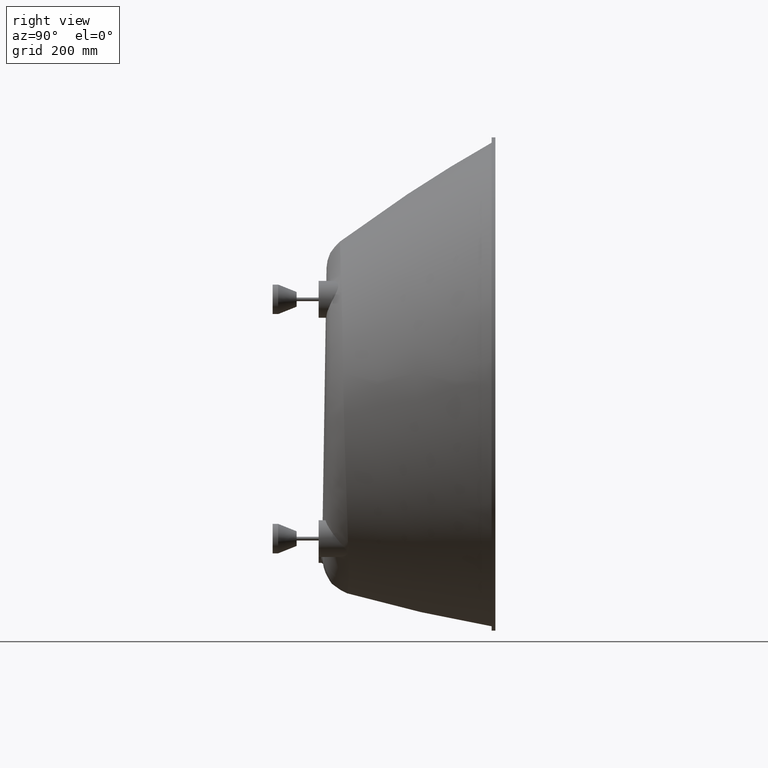
[diagram: clean part render]
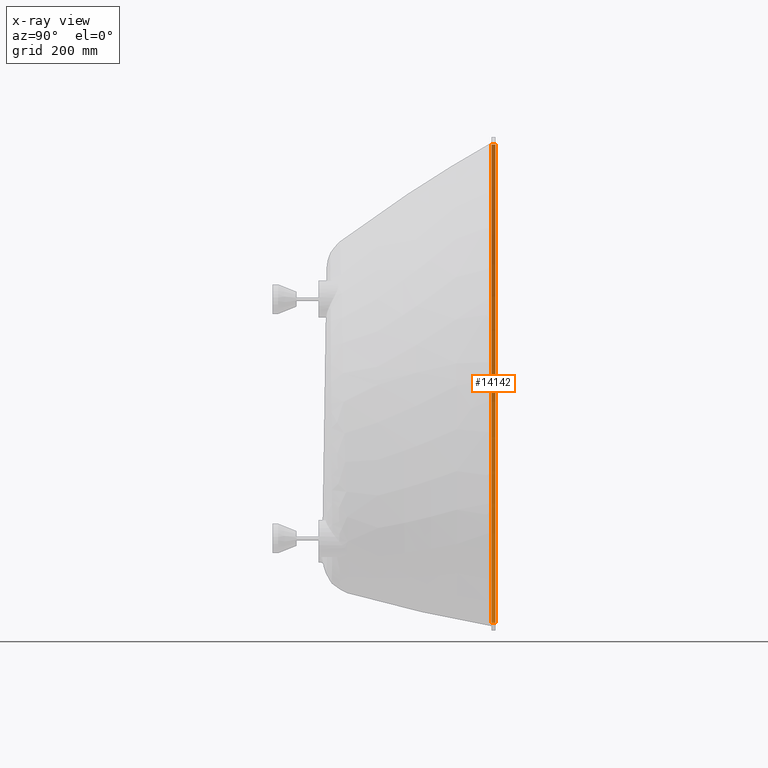
[diagram: x-ray — body ghosted, one internal face saturated and labeled with its STEP entity id]
A machine part, right view, then the same camera in x-ray: the body is ghosted and one INTERNAL B-rep face — a face not visible from any outside direction — is saturated and labeled: STEP entity #14142.
In plain terms, the highlighted cylindrical surface (partial cylindrical patch) has radius 650 mm, axis along (0, 1, 0).
Its self-contained STEP definition (entity closure, byte-faithful):
#7 = DIRECTION ( 'NONE',  ( 0.0000000000000000000, 1.000000000000000000, 0.0000000000000000000 ) ) ;
#15 = DIRECTION ( 'NONE',  ( 0.0000000000000000000, 0.0000000000000000000, 1.000000000000000000 ) ) ;
#1093 = EDGE_LOOP ( 'NONE', ( #8855, #14148, #14683, #5377 ) ) ;
#1429 = FACE_OUTER_BOUND ( 'NONE', #1093, .T. ) ;
#2361 = VERTEX_POINT ( 'NONE', #15265 ) ;
#2406 = LINE ( 'NONE', #8150, #15744 ) ;
#3756 = AXIS2_PLACEMENT_3D ( 'NONE', #6993, #12742, #18479 ) ;
#3987 = CARTESIAN_POINT ( 'NONE',  ( 7.960204194457797252E-14, -10.00000000000000000, -650.0000000000000000 ) ) ;
#5377 = ORIENTED_EDGE ( 'NONE', *, *, #11632, .F. ) ;
#5762 = DIRECTION ( 'NONE',  ( 0.0000000000000000000, 0.0000000000000000000, 1.000000000000000000 ) ) ;
#6652 = CARTESIAN_POINT ( 'NONE',  ( 0.0000000000000000000, 0.0000000000000000000, 650.0000000000000000 ) ) ;
#6739 = AXIS2_PLACEMENT_3D ( 'NONE', #12925, #7, #5762 ) ;
#6993 = CARTESIAN_POINT ( 'NONE',  ( 0.0000000000000000000, 0.0000000000000000000, 0.0000000000000000000 ) ) ;
#7044 = VECTOR ( 'NONE', #9740, 1000.000000000000000 ) ;
#7177 = CYLINDRICAL_SURFACE ( 'NONE', #6739, 650.0000000000000000 ) ;
#7185 = CARTESIAN_POINT ( 'NONE',  ( 0.0000000000000000000, -10.00000000000000000, 0.0000000000000000000 ) ) ;
#8000 = VERTEX_POINT ( 'NONE', #10025 ) ;
#8150 = CARTESIAN_POINT ( 'NONE',  ( 0.0000000000000000000, -10.00000000000000000, 650.0000000000000000 ) ) ;
#8855 = ORIENTED_EDGE ( 'NONE', *, *, #16213, .F. ) ;
#9460 = CIRCLE ( 'NONE', #15168, 650.0000000000000000 ) ;
#9740 = DIRECTION ( 'NONE',  ( 0.0000000000000000000, 1.000000000000000000, 0.0000000000000000000 ) ) ;
#10017 = CARTESIAN_POINT ( 'NONE',  ( 7.960204194457797252E-14, 0.0000000000000000000, -650.0000000000000000 ) ) ;
#10025 = CARTESIAN_POINT ( 'NONE',  ( 7.960204194457797252E-14, -10.00000000000000000, -650.0000000000000000 ) ) ;
#10364 = CIRCLE ( 'NONE', #3756, 650.0000000000000000 ) ;
#11520 = VERTEX_POINT ( 'NONE', #6652 ) ;
#11632 = EDGE_CURVE ( 'NONE', #2361, #11520, #2406, .T. ) ;
#12742 = DIRECTION ( 'NONE',  ( 0.0000000000000000000, 1.000000000000000000, 0.0000000000000000000 ) ) ;
#12925 = CARTESIAN_POINT ( 'NONE',  ( 0.0000000000000000000, -10.00000000000000000, 0.0000000000000000000 ) ) ;
#12933 = DIRECTION ( 'NONE',  ( 0.0000000000000000000, 1.000000000000000000, 0.0000000000000000000 ) ) ;
#13896 = DIRECTION ( 'NONE',  ( 0.0000000000000000000, 1.000000000000000000, 0.0000000000000000000 ) ) ;
#14142 = ADVANCED_FACE ( 'NONE', ( #1429 ), #7177, .F. ) ;
#14148 = ORIENTED_EDGE ( 'NONE', *, *, #15082, .T. ) ;
#14683 = ORIENTED_EDGE ( 'NONE', *, *, #15635, .T. ) ;
#15082 = EDGE_CURVE ( 'NONE', #8000, #16033, #16891, .T. ) ;
#15168 = AXIS2_PLACEMENT_3D ( 'NONE', #7185, #12933, #15 ) ;
#15265 = CARTESIAN_POINT ( 'NONE',  ( 0.0000000000000000000, -10.00000000000000000, 650.0000000000000000 ) ) ;
#15635 = EDGE_CURVE ( 'NONE', #16033, #11520, #10364, .T. ) ;
#15744 = VECTOR ( 'NONE', #13896, 1000.000000000000000 ) ;
#16033 = VERTEX_POINT ( 'NONE', #10017 ) ;
#16213 = EDGE_CURVE ( 'NONE', #8000, #2361, #9460, .T. ) ;
#16891 = LINE ( 'NONE', #3987, #7044 ) ;
#18479 = DIRECTION ( 'NONE',  ( 0.0000000000000000000, 0.0000000000000000000, 1.000000000000000000 ) ) ;